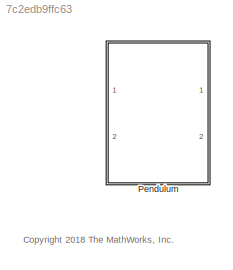
MODEL slx_7c2edb9ffc63
KIND library
CONFIG AbsTol = auto
CONFIG EnableMultiTasking = off
CONFIG FixedStep = auto
CONFIG MaxStep = auto
CONFIG MinStep = auto
CONFIG RelTol = 1e-3
CONFIG SampleTimeConstraint = Unconstrained
CONFIG Solver = VariableStepAuto
CONFIG SolverName = VariableStepAuto
CONFIG StartTime = 0.0
CONFIG StopTime = 10.0
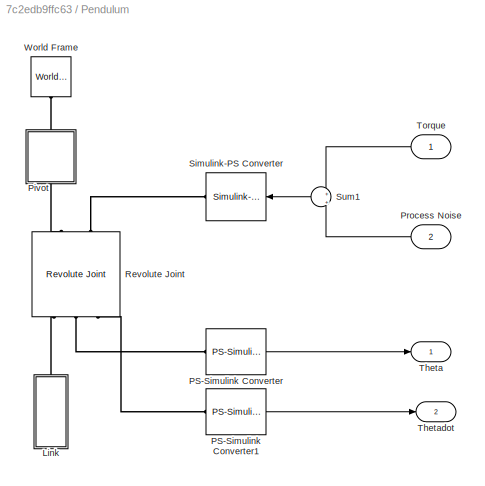
BLOCK [SubSystem] Pendulum
  Ports = [2, 2]
  RequestExecContextInheritance = off
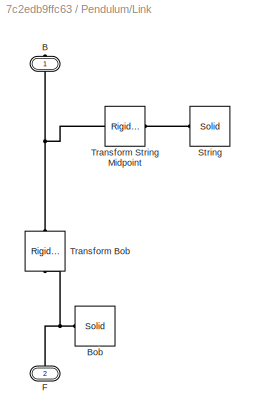
BLOCK [SubSystem] Pendulum/Link
  Ports = [0, 0, 0, 0, 0, 1, 1]
  RequestExecContextInheritance = off
  Tag = CustomStyle
BLOCK [PMIOPort] Pendulum/Link/B
  Side = Right
BLOCK [Reference] Pendulum/Link/Bob  REF=sm_lib/Body Elements/Solid
  Ports = [0, 0, 0, 0, 0, 0, 1]
  SourceBlock = sm_lib/Body Elements/Solid
  SourceProductBaseCode = MS
  SourceProductName = Simscape Multibody
  SourceType = Solid
BLOCK [PMIOPort] Pendulum/Link/F
  Port = 2
  Side = Left
BLOCK [Reference] Pendulum/Link/String  REF=sm_lib/Body Elements/Solid
  Ports = [0, 0, 0, 0, 0, 0, 1]
  SourceBlock = sm_lib/Body Elements/Solid
  SourceProductBaseCode = MS
  SourceProductName = Simscape Multibody
  SourceType = Solid
BLOCK [Reference] Pendulum/Link/Transform Bob   REF=sm_lib/Frames and
Transforms/Rigid
Transform
  Ports = [0, 0, 0, 0, 0, 1, 1]
  SourceBlock = sm_lib/Frames and\nTransforms/Rigid\nTransform
  SourceProductBaseCode = MS
  SourceProductName = Simscape Multibody
  SourceType = Rigid\nTransform
BLOCK [Reference] Pendulum/Link/Transform String Midpoint  REF=sm_lib/Frames and
Transforms/Rigid
Transform
  Ports = [0, 0, 0, 0, 0, 1, 1]
  SourceBlock = sm_lib/Frames and\nTransforms/Rigid\nTransform
  SourceProductBaseCode = MS
  SourceProductName = Simscape Multibody
  SourceType = Rigid\nTransform
BLOCK [Reference] Pendulum/PS-Simulink Converter  REF=nesl_utility/PS-Simulink
Converter
  Ports = [0, 1, 0, 0, 0, 1]
  SourceBlock = nesl_utility/PS-Simulink\nConverter
  SourceProductBaseCode = SS
  SourceProductName = Simscape
  SourceType = PS-Simulink\nConverter
BLOCK [Reference] Pendulum/PS-Simulink Converter1  REF=nesl_utility/PS-Simulink
Converter
  Ports = [0, 1, 0, 0, 0, 1]
  SourceBlock = nesl_utility/PS-Simulink\nConverter
  SourceProductBaseCode = SS
  SourceProductName = Simscape
  SourceType = PS-Simulink\nConverter
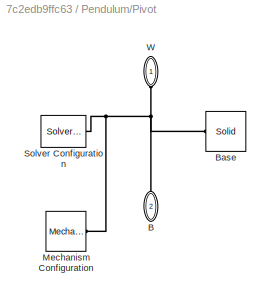
BLOCK [SubSystem] Pendulum/Pivot
  Ports = [0, 0, 0, 0, 0, 1, 1]
  RequestExecContextInheritance = off
  Tag = CustomStyle
BLOCK [PMIOPort] Pendulum/Pivot/B
  Port = 2
  Side = Right
BLOCK [Reference] Pendulum/Pivot/Base  REF=sm_lib/Body Elements/Solid
  Ports = [0, 0, 0, 0, 0, 0, 1]
  SourceBlock = sm_lib/Body Elements/Solid
  SourceProductBaseCode = MS
  SourceProductName = Simscape Multibody
  SourceType = Solid
BLOCK [Reference] Pendulum/Pivot/Mechanism Configuration  REF=sm_lib/Utilities/Mechanism
Configuration
  Ports = [0, 0, 0, 0, 0, 0, 1]
  SourceBlock = sm_lib/Utilities/Mechanism\nConfiguration
  SourceProductBaseCode = MS
  SourceProductName = Simscape Multibody
  SourceType = Mechanism\nConfiguration
BLOCK [Reference] Pendulum/Pivot/Solver Configuration  REF=nesl_utility/Solver
Configuration
  Ports = [0, 0, 0, 0, 0, 0, 1]
  SourceBlock = nesl_utility/Solver\nConfiguration
  SourceProductBaseCode = SS
  SourceProductName = Simscape
  SourceType = Solver\nConfiguration
BLOCK [PMIOPort] Pendulum/Pivot/W
  Side = Left
BLOCK [Inport] Pendulum/Process Noise
  IconDisplay = Port number
  Port = 2
BLOCK [Reference] Pendulum/Revolute Joint  REF=sm_lib/Joints/Revolute Joint
  Ports = [0, 0, 0, 0, 0, 2, 3]
  SourceBlock = sm_lib/Joints/Revolute Joint
  SourceProductBaseCode = MS
  SourceProductName = Simscape Multibody
  SourceType = Revolute Joint
BLOCK [Reference] Pendulum/Simulink-PS Converter  REF=nesl_utility/Simulink-PS
Converter
  Ports = [1, 0, 0, 0, 0, 0, 1]
  SourceBlock = nesl_utility/Simulink-PS\nConverter
  SourceProductBaseCode = SS
  SourceProductName = Simscape
  SourceType = Simulink-PS\nConverter
BLOCK [Sum] Pendulum/Sum1
  IconShape = round
  InputSameDT = off
  Inputs = +|+
  OutDataTypeStr = Inherit: Inherit via internal rule
  Ports = [2, 1]
  SaturateOnIntegerOverflow = off
BLOCK [Outport] Pendulum/Theta
  IconDisplay = Port number
BLOCK [Outport] Pendulum/Thetadot
  IconDisplay = Port number
  Port = 2
BLOCK [Inport] Pendulum/Torque
  IconDisplay = Port number
BLOCK [Reference] Pendulum/World Frame  REF=sm_lib/Frames and
Transforms/World Frame
  Ports = [0, 0, 0, 0, 0, 0, 1]
  SourceBlock = sm_lib/Frames and\nTransforms/World Frame
  SourceProductBaseCode = MS
  SourceProductName = Simscape Multibody
  SourceType = World Frame
ANNOTATION (root): <copyright redacted>
LINE Pendulum/PS-Simulink Converter1:1 -> Pendulum/Thetadot:1
LINE Pendulum/PS-Simulink Converter:1 -> Pendulum/Theta:1
LINE Pendulum/Process Noise:1 -> Pendulum/Sum1:2
LINE Pendulum/Sum1:1 -> Pendulum/Simulink-PS Converter:1
LINE Pendulum/Torque:1 -> Pendulum/Sum1:1
PNET net1: Pendulum/Link/B:RConn1 -- Pendulum/Link/Transform Bob :LConn1 -- Pendulum/Link/Transform String Midpoint:LConn1
PNET net2: Pendulum/Link/Bob:RConn1 -- Pendulum/Link/F:RConn1 -- Pendulum/Link/Transform Bob :RConn1
PLINE Pendulum/Link/String:RConn1 -- Pendulum/Link/Transform String Midpoint:RConn1
PLINE Pendulum/Link:RConn1 -- Pendulum/Revolute Joint:RConn1
PLINE Pendulum/PS-Simulink Converter1:LConn1 -- Pendulum/Revolute Joint:RConn3
PLINE Pendulum/PS-Simulink Converter:LConn1 -- Pendulum/Revolute Joint:RConn2
PNET net3: Pendulum/Pivot/B:RConn1 -- Pendulum/Pivot/Base:RConn1 -- Pendulum/Pivot/Mechanism Configuration:RConn1 -- Pendulum/Pivot/Solver Configuration:RConn1 -- Pendulum/Pivot/W:RConn1
PLINE Pendulum/Pivot:LConn1 -- Pendulum/World Frame:RConn1
PLINE Pendulum/Pivot:RConn1 -- Pendulum/Revolute Joint:LConn1
PLINE Pendulum/Revolute Joint:LConn2 -- Pendulum/Simulink-PS Converter:RConn1
note: PNET lines group multi-terminal physical nets as a canonical sorted terminal list (undirected conserving connections); 2-terminal nets keep the pairwise PLINE form
